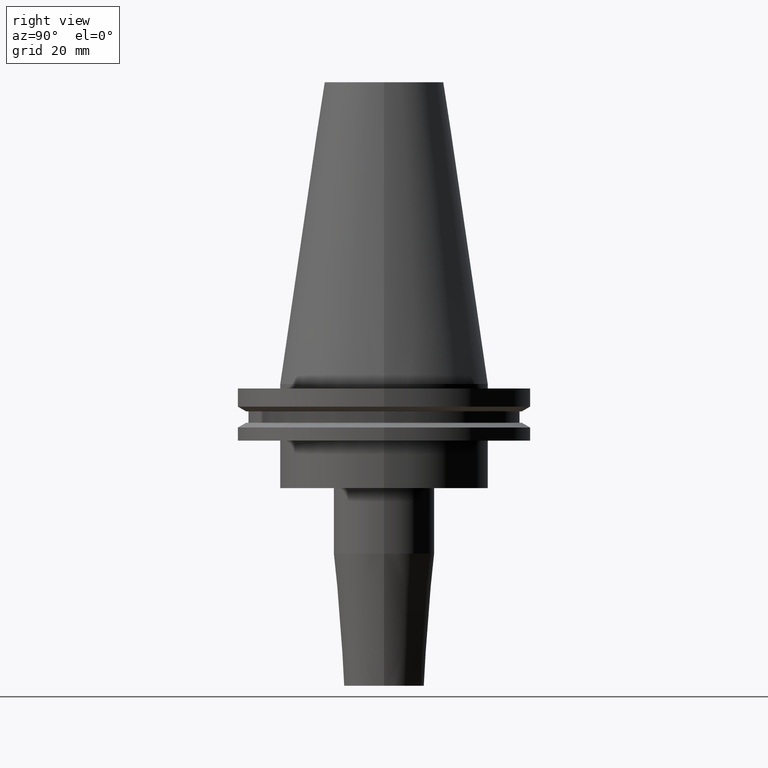
[diagram: clean part render]
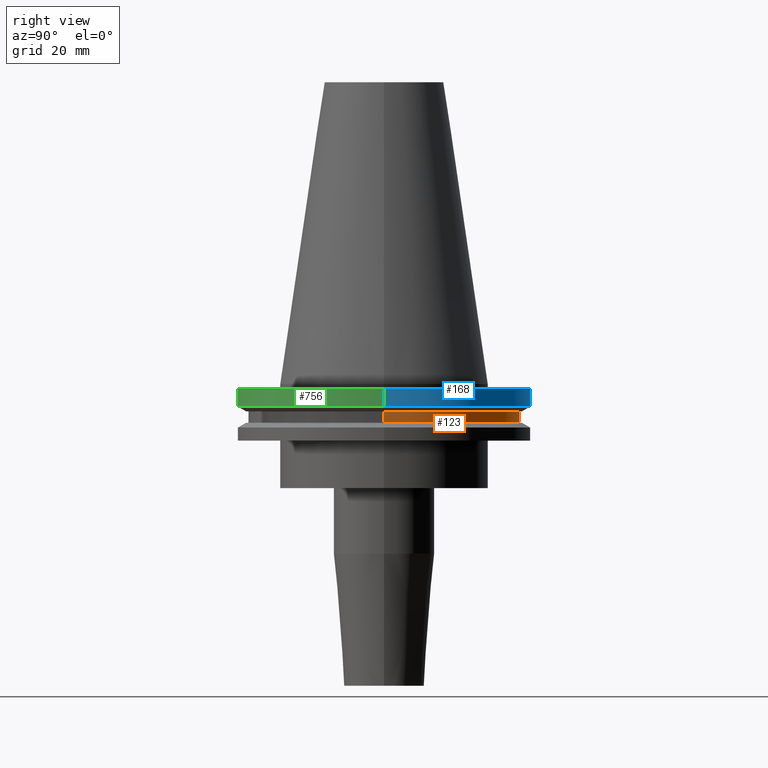
[diagram: same view with three faces highlighted in distinct colors, each labeled with its STEP entity id]
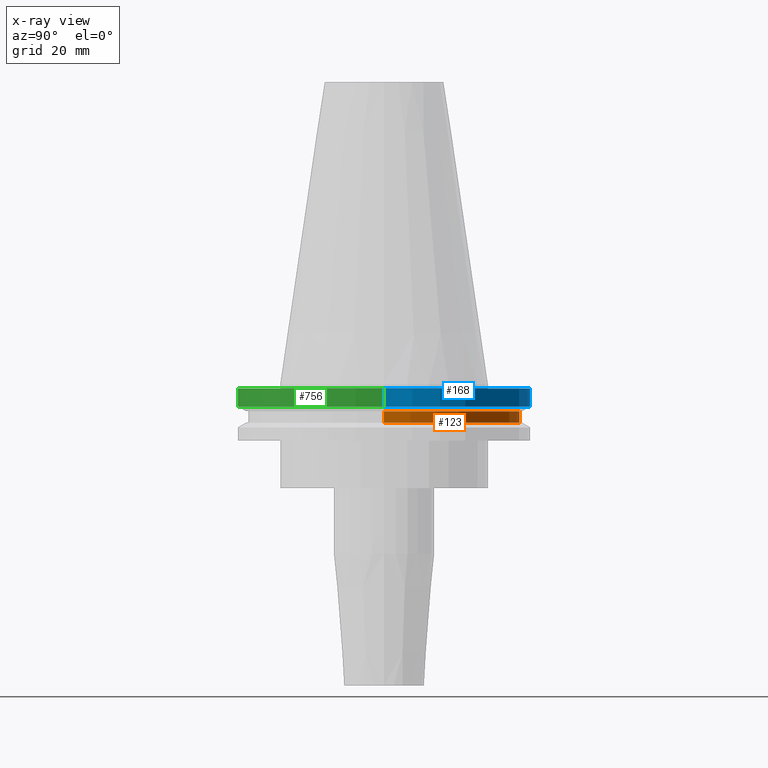
[diagram: x-ray of the same camera — body ghosted, the three highlighted faces saturated]
A machine part, right view with three faces highlighted in distinct colors.
The next image is the same camera in x-ray (body ghosted, the three faces saturated) — at least one of them is partly hidden behind the body in this view.
Their STEP definitions:

[orange] entity #123 — the highlighted cylindrical surface (partial cylindrical patch) has radius 45.645 mm, axis along (-0, -0, 1).
#75 = CARTESIAN_POINT ( 'NONE',  ( 0.000000000000000000, 0.000000000000000000, -13.05499999999999794 ) ) ;
#104 = VERTEX_POINT ( 'NONE', #685 ) ;
#111 = VECTOR ( 'NONE', #584, 1000.000000000000000 ) ;
#115 = ORIENTED_EDGE ( 'NONE', *, *, #214, .F. ) ;
#123 = ADVANCED_FACE ( 'NONE', ( #554 ), #149, .T. ) ;
#146 = EDGE_CURVE ( 'NONE', #376, #326, #682, .T. ) ;
#149 = CYLINDRICAL_SURFACE ( 'NONE', #753, 45.64500000000000313 ) ;
#195 = CARTESIAN_POINT ( 'NONE',  ( 45.64500000000000313, 0.000000000000000000, -9.204999999999991189 ) ) ;
#196 = ORIENTED_EDGE ( 'NONE', *, *, #529, .T. ) ;
#214 = EDGE_CURVE ( 'NONE', #239, #376, #741, .T. ) ;
#239 = VERTEX_POINT ( 'NONE', #504 ) ;
#254 = CARTESIAN_POINT ( 'NONE',  ( -45.64500000000000313, 5.589900314708094957E-15, -9.204999999999991189 ) ) ;
#270 = DIRECTION ( 'NONE',  ( -0.000000000000000000, -0.000000000000000000, 1.000000000000000000 ) ) ;
#292 = EDGE_LOOP ( 'NONE', ( #668, #196, #839, #115 ) ) ;
#298 = LINE ( 'NONE', #487, #410 ) ;
#326 = VERTEX_POINT ( 'NONE', #254 ) ;
#332 = DIRECTION ( 'NONE',  ( 1.000000000000000000, 0.000000000000000000, 0.000000000000000000 ) ) ;
#376 = VERTEX_POINT ( 'NONE', #195 ) ;
#384 = CARTESIAN_POINT ( 'NONE',  ( 45.64500000000000313, 0.000000000000000000, 101.5999999999999943 ) ) ;
#410 = VECTOR ( 'NONE', #746, 1000.000000000000000 ) ;
#414 = EDGE_CURVE ( 'NONE', #239, #104, #826, .T. ) ;
#487 = CARTESIAN_POINT ( 'NONE',  ( -45.64500000000000313, 5.589900314708094957E-15, 101.5999999999999943 ) ) ;
#492 = DIRECTION ( 'NONE',  ( -0.000000000000000000, -0.000000000000000000, 1.000000000000000000 ) ) ;
#504 = CARTESIAN_POINT ( 'NONE',  ( 45.64500000000000313, 0.000000000000000000, -13.05499999999999794 ) ) ;
#529 = EDGE_CURVE ( 'NONE', #104, #326, #298, .T. ) ;
#545 = DIRECTION ( 'NONE',  ( 1.000000000000000000, 0.000000000000000000, 0.000000000000000000 ) ) ;
#549 = CARTESIAN_POINT ( 'NONE',  ( 0.000000000000000000, 0.000000000000000000, -9.204999999999991189 ) ) ;
#550 = AXIS2_PLACEMENT_3D ( 'NONE', #75, #270, #332 ) ;
#554 = FACE_OUTER_BOUND ( 'NONE', #292, .T. ) ;
#584 = DIRECTION ( 'NONE',  ( -0.000000000000000000, -0.000000000000000000, 1.000000000000000000 ) ) ;
#668 = ORIENTED_EDGE ( 'NONE', *, *, #414, .T. ) ;
#675 = CARTESIAN_POINT ( 'NONE',  ( 0.000000000000000000, 0.000000000000000000, 101.5999999999999943 ) ) ;
#682 = CIRCLE ( 'NONE', #802, 45.64500000000000313 ) ;
#685 = CARTESIAN_POINT ( 'NONE',  ( -45.64500000000000313, 5.589900314708094957E-15, -13.05499999999999794 ) ) ;
#738 = DIRECTION ( 'NONE',  ( 1.000000000000000000, 0.000000000000000000, 0.000000000000000000 ) ) ;
#741 = LINE ( 'NONE', #384, #111 ) ;
#746 = DIRECTION ( 'NONE',  ( -0.000000000000000000, -0.000000000000000000, 1.000000000000000000 ) ) ;
#753 = AXIS2_PLACEMENT_3D ( 'NONE', #675, #492, #545 ) ;
#802 = AXIS2_PLACEMENT_3D ( 'NONE', #549, #814, #738 ) ;
#814 = DIRECTION ( 'NONE',  ( -0.000000000000000000, -0.000000000000000000, 1.000000000000000000 ) ) ;
#826 = CIRCLE ( 'NONE', #550, 45.64500000000000313 ) ;
#839 = ORIENTED_EDGE ( 'NONE', *, *, #146, .F. ) ;

[blue] entity #168 — the highlighted cylindrical surface (partial cylindrical patch) has radius 49.215 mm, axis along (-0, -0, 1).
#27 = DIRECTION ( 'NONE',  ( 1.000000000000000000, 0.000000000000000000, 0.000000000000000000 ) ) ;
#32 = CARTESIAN_POINT ( 'NONE',  ( 0.000000000000000000, 0.000000000000000000, 101.5999999999999943 ) ) ;
#44 = CARTESIAN_POINT ( 'NONE',  ( 49.21499999999999631, 0.000000000000000000, -1.499999999999987566 ) ) ;
#57 = EDGE_CURVE ( 'NONE', #699, #590, #137, .T. ) ;
#90 = FACE_OUTER_BOUND ( 'NONE', #852, .T. ) ;
#118 = ORIENTED_EDGE ( 'NONE', *, *, #57, .F. ) ;
#137 = CIRCLE ( 'NONE', #250, 49.21499999999999631 ) ;
#168 = ADVANCED_FACE ( 'NONE', ( #90 ), #816, .T. ) ;
#179 = CARTESIAN_POINT ( 'NONE',  ( 0.000000000000000000, 0.000000000000000000, -7.602389855251287187 ) ) ;
#188 = VERTEX_POINT ( 'NONE', #825 ) ;
#205 = CARTESIAN_POINT ( 'NONE',  ( 49.21499999999999631, 0.000000000000000000, 101.5999999999999943 ) ) ;
#210 = VECTOR ( 'NONE', #728, 1000.000000000000000 ) ;
#250 = AXIS2_PLACEMENT_3D ( 'NONE', #717, #356, #679 ) ;
#269 = LINE ( 'NONE', #205, #210 ) ;
#295 = AXIS2_PLACEMENT_3D ( 'NONE', #32, #822, #27 ) ;
#356 = DIRECTION ( 'NONE',  ( -0.000000000000000000, -0.000000000000000000, 1.000000000000000000 ) ) ;
#369 = DIRECTION ( 'NONE',  ( -0.000000000000000000, -0.000000000000000000, 1.000000000000000000 ) ) ;
#421 = VERTEX_POINT ( 'NONE', #473 ) ;
#443 = ORIENTED_EDGE ( 'NONE', *, *, #665, .T. ) ;
#461 = CIRCLE ( 'NONE', #671, 49.21500000000000341 ) ;
#473 = CARTESIAN_POINT ( 'NONE',  ( -49.21500000000000341, 6.027099222003699404E-15, -7.602389855251287187 ) ) ;
#478 = ORIENTED_EDGE ( 'NONE', *, *, #788, .T. ) ;
#518 = ORIENTED_EDGE ( 'NONE', *, *, #836, .F. ) ;
#568 = LINE ( 'NONE', #578, #833 ) ;
#578 = CARTESIAN_POINT ( 'NONE',  ( -49.21499999999999631, 6.027099222003697826E-15, 101.5999999999999943 ) ) ;
#590 = VERTEX_POINT ( 'NONE', #621 ) ;
#621 = CARTESIAN_POINT ( 'NONE',  ( -49.21499999999999631, 6.027099222003697826E-15, -1.499999999999987566 ) ) ;
#637 = DIRECTION ( 'NONE',  ( 1.000000000000000000, 0.000000000000000000, 0.000000000000000000 ) ) ;
#665 = EDGE_CURVE ( 'NONE', #421, #590, #568, .T. ) ;
#671 = AXIS2_PLACEMENT_3D ( 'NONE', #179, #701, #637 ) ;
#679 = DIRECTION ( 'NONE',  ( 1.000000000000000000, 0.000000000000000000, 0.000000000000000000 ) ) ;
#699 = VERTEX_POINT ( 'NONE', #44 ) ;
#701 = DIRECTION ( 'NONE',  ( -0.000000000000000000, -0.000000000000000000, 1.000000000000000000 ) ) ;
#717 = CARTESIAN_POINT ( 'NONE',  ( 0.000000000000000000, 0.000000000000000000, -1.499999999999987566 ) ) ;
#728 = DIRECTION ( 'NONE',  ( -0.000000000000000000, -0.000000000000000000, 1.000000000000000000 ) ) ;
#788 = EDGE_CURVE ( 'NONE', #188, #421, #461, .T. ) ;
#816 = CYLINDRICAL_SURFACE ( 'NONE', #295, 49.21499999999999631 ) ;
#822 = DIRECTION ( 'NONE',  ( -0.000000000000000000, -0.000000000000000000, 1.000000000000000000 ) ) ;
#825 = CARTESIAN_POINT ( 'NONE',  ( 49.21500000000000341, 0.000000000000000000, -7.602389855251287187 ) ) ;
#833 = VECTOR ( 'NONE', #369, 1000.000000000000000 ) ;
#836 = EDGE_CURVE ( 'NONE', #188, #699, #269, .T. ) ;
#852 = EDGE_LOOP ( 'NONE', ( #478, #443, #118, #518 ) ) ;

[green] entity #756 — the highlighted cylindrical surface (partial cylindrical patch) has radius 49.215 mm, axis along (-0, -0, 1).
#19 = CARTESIAN_POINT ( 'NONE',  ( 0.000000000000000000, 0.000000000000000000, -7.602389855251287187 ) ) ;
#44 = CARTESIAN_POINT ( 'NONE',  ( 49.21499999999999631, 0.000000000000000000, -1.499999999999987566 ) ) ;
#167 = ORIENTED_EDGE ( 'NONE', *, *, #713, .F. ) ;
#188 = VERTEX_POINT ( 'NONE', #825 ) ;
#205 = CARTESIAN_POINT ( 'NONE',  ( 49.21499999999999631, 0.000000000000000000, 101.5999999999999943 ) ) ;
#210 = VECTOR ( 'NONE', #728, 1000.000000000000000 ) ;
#213 = EDGE_CURVE ( 'NONE', #421, #188, #576, .T. ) ;
#222 = DIRECTION ( 'NONE',  ( -0.000000000000000000, -0.000000000000000000, 1.000000000000000000 ) ) ;
#230 = EDGE_LOOP ( 'NONE', ( #464, #831, #853, #167 ) ) ;
#247 = DIRECTION ( 'NONE',  ( 1.000000000000000000, 0.000000000000000000, 0.000000000000000000 ) ) ;
#248 = AXIS2_PLACEMENT_3D ( 'NONE', #19, #222, #488 ) ;
#269 = LINE ( 'NONE', #205, #210 ) ;
#343 = CIRCLE ( 'NONE', #819, 49.21499999999999631 ) ;
#369 = DIRECTION ( 'NONE',  ( -0.000000000000000000, -0.000000000000000000, 1.000000000000000000 ) ) ;
#377 = CARTESIAN_POINT ( 'NONE',  ( 0.000000000000000000, 0.000000000000000000, 101.5999999999999943 ) ) ;
#386 = DIRECTION ( 'NONE',  ( 1.000000000000000000, 0.000000000000000000, 0.000000000000000000 ) ) ;
#421 = VERTEX_POINT ( 'NONE', #473 ) ;
#435 = AXIS2_PLACEMENT_3D ( 'NONE', #377, #436, #247 ) ;
#436 = DIRECTION ( 'NONE',  ( -0.000000000000000000, -0.000000000000000000, 1.000000000000000000 ) ) ;
#464 = ORIENTED_EDGE ( 'NONE', *, *, #665, .F. ) ;
#473 = CARTESIAN_POINT ( 'NONE',  ( -49.21500000000000341, 6.027099222003699404E-15, -7.602389855251287187 ) ) ;
#488 = DIRECTION ( 'NONE',  ( 1.000000000000000000, 0.000000000000000000, 0.000000000000000000 ) ) ;
#503 = FACE_OUTER_BOUND ( 'NONE', #230, .T. ) ;
#564 = DIRECTION ( 'NONE',  ( -0.000000000000000000, -0.000000000000000000, 1.000000000000000000 ) ) ;
#568 = LINE ( 'NONE', #578, #833 ) ;
#576 = CIRCLE ( 'NONE', #248, 49.21500000000000341 ) ;
#578 = CARTESIAN_POINT ( 'NONE',  ( -49.21499999999999631, 6.027099222003697826E-15, 101.5999999999999943 ) ) ;
#590 = VERTEX_POINT ( 'NONE', #621 ) ;
#621 = CARTESIAN_POINT ( 'NONE',  ( -49.21499999999999631, 6.027099222003697826E-15, -1.499999999999987566 ) ) ;
#665 = EDGE_CURVE ( 'NONE', #421, #590, #568, .T. ) ;
#699 = VERTEX_POINT ( 'NONE', #44 ) ;
#713 = EDGE_CURVE ( 'NONE', #590, #699, #343, .T. ) ;
#728 = DIRECTION ( 'NONE',  ( -0.000000000000000000, -0.000000000000000000, 1.000000000000000000 ) ) ;
#756 = ADVANCED_FACE ( 'NONE', ( #503 ), #759, .T. ) ;
#759 = CYLINDRICAL_SURFACE ( 'NONE', #435, 49.21499999999999631 ) ;
#819 = AXIS2_PLACEMENT_3D ( 'NONE', #823, #564, #386 ) ;
#823 = CARTESIAN_POINT ( 'NONE',  ( 0.000000000000000000, 0.000000000000000000, -1.499999999999987566 ) ) ;
#825 = CARTESIAN_POINT ( 'NONE',  ( 49.21500000000000341, 0.000000000000000000, -7.602389855251287187 ) ) ;
#831 = ORIENTED_EDGE ( 'NONE', *, *, #213, .T. ) ;
#833 = VECTOR ( 'NONE', #369, 1000.000000000000000 ) ;
#836 = EDGE_CURVE ( 'NONE', #188, #699, #269, .T. ) ;
#853 = ORIENTED_EDGE ( 'NONE', *, *, #836, .T. ) ;